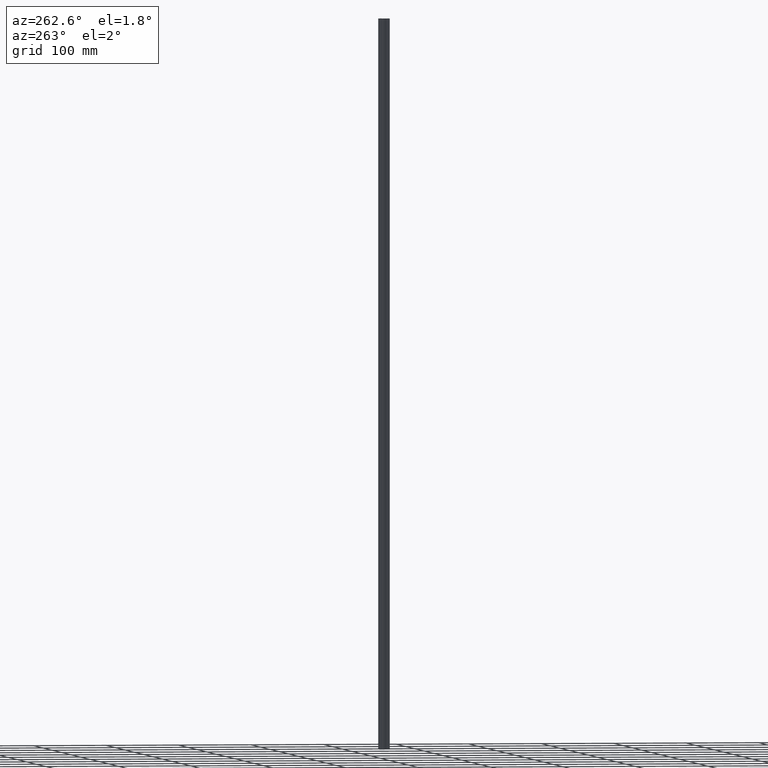
[diagram: clean part render]
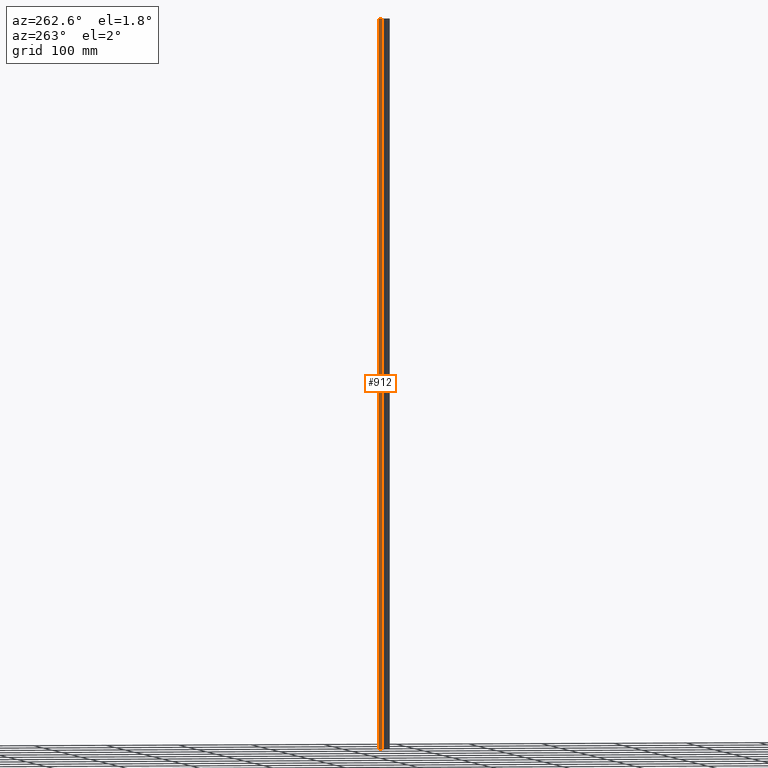
[diagram: same view with one face highlighted and labeled with its STEP entity id]
A machine part, auxiliary view. The second image highlights one B-rep face of the part: STEP entity #912.
In plain terms, the highlighted planar face has unit normal (-0.7065, 0.7077, 0).
Its self-contained STEP definition (entity closure, byte-faithful):
#38 = CARTESIAN_POINT ( 'NONE',  ( -3.004552497557150000, 14.97539663620180200, -1000.000000000000000 ) ) ;
#96 = VERTEX_POINT ( 'NONE', #657 ) ;
#161 = DIRECTION ( 'NONE',  ( 0.0000000000000000000, 0.0000000000000000000, 1.000000000000000000 ) ) ;
#231 = VERTEX_POINT ( 'NONE', #423 ) ;
#257 = LINE ( 'NONE', #859, #533 ) ;
#286 = DIRECTION ( 'NONE',  ( -0.7077094802881966900, -0.7065035679387687800, 0.0000000000000000000 ) ) ;
#348 = EDGE_CURVE ( 'NONE', #393, #1377, #672, .T. ) ;
#393 = VERTEX_POINT ( 'NONE', #1329 ) ;
#423 = CARTESIAN_POINT ( 'NONE',  ( -3.004552497557165100, 14.97539663620178800, -1000.000000000000000 ) ) ;
#446 = VECTOR ( 'NONE', #584, 1000.000000000000000 ) ;
#464 = ORIENTED_EDGE ( 'NONE', *, *, #476, .T. ) ;
#476 = EDGE_CURVE ( 'NONE', #1377, #96, #479, .T. ) ;
#479 = LINE ( 'NONE', #1795, #1824 ) ;
#533 = VECTOR ( 'NONE', #286, 1000.000000000000100 ) ;
#583 = PLANE ( 'NONE',  #690 ) ;
#584 = DIRECTION ( 'NONE',  ( -0.0000000000000000000, -0.0000000000000000000, -1.000000000000000000 ) ) ;
#589 = DIRECTION ( 'NONE',  ( -0.7077094802881966900, -0.7065035679387687800, 0.0000000000000000000 ) ) ;
#638 = ORIENTED_EDGE ( 'NONE', *, *, #1782, .T. ) ;
#657 = CARTESIAN_POINT ( 'NONE',  ( -3.004552497557165100, 14.97539663620178800, 0.0000000000000000000 ) ) ;
#672 = LINE ( 'NONE', #711, #1609 ) ;
#690 = AXIS2_PLACEMENT_3D ( 'NONE', #38, #739, #589 ) ;
#711 = CARTESIAN_POINT ( 'NONE',  ( -6.787926605572468300, 11.19846926612972000, -1000.000000000000000 ) ) ;
#739 = DIRECTION ( 'NONE',  ( -0.7065035679387687800, 0.7077094802881966900, 0.0000000000000000000 ) ) ;
#748 = EDGE_LOOP ( 'NONE', ( #1515, #1139, #464, #638 ) ) ;
#859 = CARTESIAN_POINT ( 'NONE',  ( -3.004552497557150000, 14.97539663620180200, -1000.000000000000000 ) ) ;
#912 = ADVANCED_FACE ( 'NONE', ( #1461 ), #583, .T. ) ;
#1033 = CARTESIAN_POINT ( 'NONE',  ( -6.787926605572468300, 11.19846926612972000, 0.0000000000000000000 ) ) ;
#1043 = CARTESIAN_POINT ( 'NONE',  ( -3.004552497557150000, 14.97539663620180200, -1000.000000000000000 ) ) ;
#1139 = ORIENTED_EDGE ( 'NONE', *, *, #348, .T. ) ;
#1329 = CARTESIAN_POINT ( 'NONE',  ( -6.787926605572468300, 11.19846926612972000, -1000.000000000000000 ) ) ;
#1369 = DIRECTION ( 'NONE',  ( 0.7077094802881966900, 0.7065035679387687800, -0.0000000000000000000 ) ) ;
#1377 = VERTEX_POINT ( 'NONE', #1033 ) ;
#1461 = FACE_OUTER_BOUND ( 'NONE', #748, .T. ) ;
#1515 = ORIENTED_EDGE ( 'NONE', *, *, #1575, .T. ) ;
#1575 = EDGE_CURVE ( 'NONE', #231, #393, #257, .T. ) ;
#1609 = VECTOR ( 'NONE', #161, 1000.000000000000000 ) ;
#1776 = LINE ( 'NONE', #1043, #446 ) ;
#1782 = EDGE_CURVE ( 'NONE', #96, #231, #1776, .T. ) ;
#1795 = CARTESIAN_POINT ( 'NONE',  ( -3.004552497557150000, 14.97539663620180200, 0.0000000000000000000 ) ) ;
#1824 = VECTOR ( 'NONE', #1369, 1000.000000000000100 ) ;